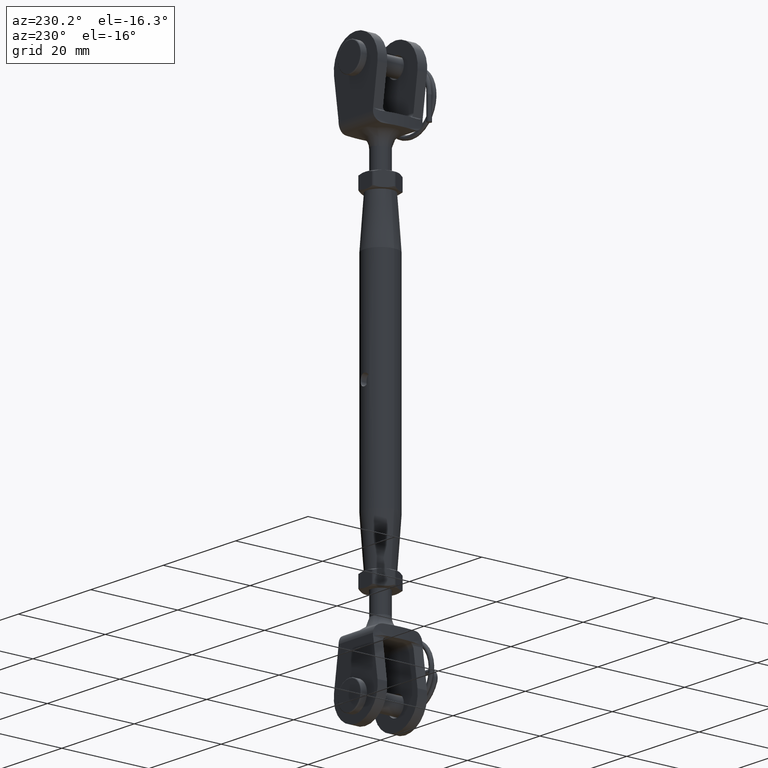
[diagram: clean part render]
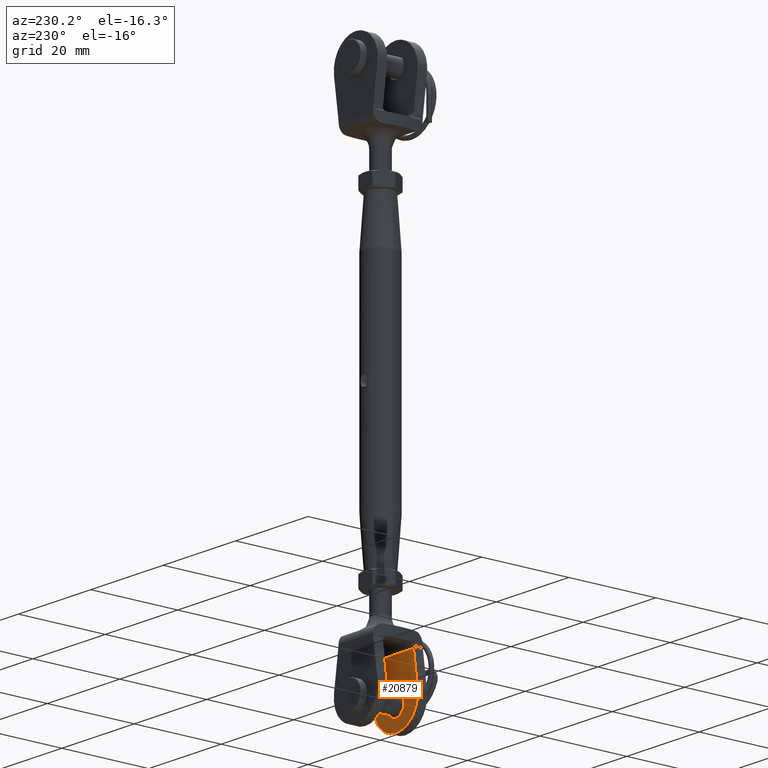
[diagram: same view with one face highlighted and labeled with its STEP entity id]
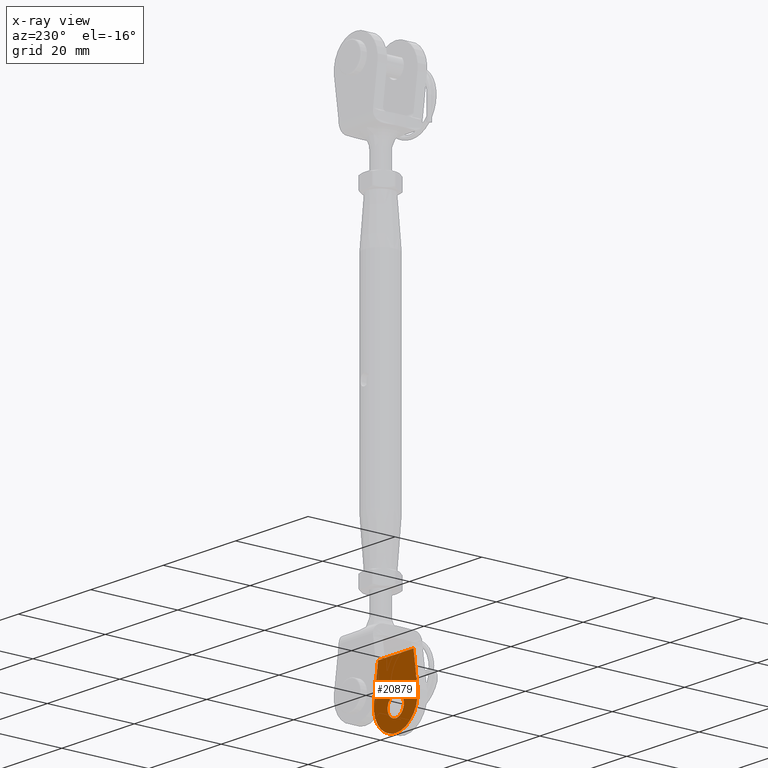
[diagram: x-ray of the same camera — body ghosted, the highlighted face saturated]
A machine part, auxiliary view. The second image highlights one B-rep face of the part: STEP entity #20879.
The next image is the same camera in x-ray: the body ghosted, the highlighted face saturated — about 4% of this face is hidden behind the body in this view.
In plain terms, the highlighted planar face has unit normal (0, 1, 0).
Its self-contained STEP definition (entity closure, byte-faithful):
#2078 = DIRECTION ( 'NONE',  ( -0.1444918574591643500, 0.0000000000000000000, 0.9895059894351324600 ) ) ;
#3071 = VERTEX_POINT ( 'NONE', #16437 ) ;
#4348 = DIRECTION ( 'NONE',  ( 0.0000000000000000000, 0.0000000000000000000, 1.000000000000000000 ) ) ;
#4849 = EDGE_CURVE ( 'NONE', #6359, #18119, #11126, .T. ) ;
#6017 = CIRCLE ( 'NONE', #25822, 6.063631816342160100 ) ;
#6063 = AXIS2_PLACEMENT_3D ( 'NONE', #15391, #20124, #17769 ) ;
#6359 = VERTEX_POINT ( 'NONE', #7856 ) ;
#6433 = ORIENTED_EDGE ( 'NONE', *, *, #26220, .T. ) ;
#6873 = CARTESIAN_POINT ( 'NONE',  ( 8.659864886992019300E-016, -3.500000000000000000, 15.50000000000000400 ) ) ;
#7715 = VERTEX_POINT ( 'NONE', #6873 ) ;
#7856 = CARTESIAN_POINT ( 'NONE',  ( 6.000000000000000000, -3.500000000000000000, 8.560222759566077100 ) ) ;
#7858 = FACE_BOUND ( 'NONE', #24285, .T. ) ;
#7862 = DIRECTION ( 'NONE',  ( 0.0000000000000000000, 0.0000000000000000000, -1.000000000000000000 ) ) ;
#8408 = DIRECTION ( 'NONE',  ( 0.0000000000000000000, 0.0000000000000000000, 1.000000000000000000 ) ) ;
#9094 = VERTEX_POINT ( 'NONE', #12390 ) ;
#9108 = CARTESIAN_POINT ( 'NONE',  ( 4.896024237348628500, -3.500000000000000000, 1.000000000000000000 ) ) ;
#9220 = FACE_OUTER_BOUND ( 'NONE', #21255, .T. ) ;
#9811 = LINE ( 'NONE', #24417, #22309 ) ;
#10357 = AXIS2_PLACEMENT_3D ( 'NONE', #18726, #12384, #7862 ) ;
#10388 = ORIENTED_EDGE ( 'NONE', *, *, #11766, .T. ) ;
#10571 = CARTESIAN_POINT ( 'NONE',  ( 0.0000000000000000000, -3.500000000000000000, 10.50000000000000000 ) ) ;
#11063 = AXIS2_PLACEMENT_3D ( 'NONE', #21773, #27951, #4348 ) ;
#11085 = DIRECTION ( 'NONE',  ( -0.0000000000000000000, 1.000000000000000000, -0.0000000000000000000 ) ) ;
#11126 = LINE ( 'NONE', #13960, #16201 ) ;
#11766 = EDGE_CURVE ( 'NONE', #9094, #7715, #27792, .T. ) ;
#11874 = ORIENTED_EDGE ( 'NONE', *, *, #14897, .F. ) ;
#12182 = CARTESIAN_POINT ( 'NONE',  ( -4.896024237348626700, -3.500000000000000000, 1.000000000000002700 ) ) ;
#12248 = AXIS2_PLACEMENT_3D ( 'NONE', #10571, #21545, #8408 ) ;
#12384 = DIRECTION ( 'NONE',  ( 0.0000000000000000000, 1.000000000000000000, 0.0000000000000000000 ) ) ;
#12390 = CARTESIAN_POINT ( 'NONE',  ( -5.999999999999998200, -3.500000000000000000, 8.560222759566078900 ) ) ;
#12903 = EDGE_CURVE ( 'NONE', #18119, #16071, #9811, .T. ) ;
#12904 = LINE ( 'NONE', #16841, #18339 ) ;
#13124 = CARTESIAN_POINT ( 'NONE',  ( 2.755455298081543800E-016, -3.500000000000000000, 8.250000000000000000 ) ) ;
#13886 = DIRECTION ( 'NONE',  ( -1.000000000000000000, 0.0000000000000000000, 1.224646799147353200E-016 ) ) ;
#13960 = CARTESIAN_POINT ( 'NONE',  ( 4.750000000000000900, -3.500000000000000000, 5.388507560391507200E-016 ) ) ;
#14897 = EDGE_CURVE ( 'NONE', #21178, #3071, #22978, .T. ) ;
#15391 = CARTESIAN_POINT ( 'NONE',  ( 8.659864886992019300E-016, -3.500000000000000000, 9.436368183657842600 ) ) ;
#16071 = VERTEX_POINT ( 'NONE', #12182 ) ;
#16201 = VECTOR ( 'NONE', #18134, 999.9999999999998900 ) ;
#16437 = CARTESIAN_POINT ( 'NONE',  ( 0.0000000000000000000, -3.500000000000000000, 12.75000000000000200 ) ) ;
#16841 = CARTESIAN_POINT ( 'NONE',  ( -5.999999999999999100, -3.500000000000000000, 8.560222759566077100 ) ) ;
#17418 = ORIENTED_EDGE ( 'NONE', *, *, #12903, .T. ) ;
#17769 = DIRECTION ( 'NONE',  ( 0.0000000000000000000, 0.0000000000000000000, -1.000000000000000000 ) ) ;
#18119 = VERTEX_POINT ( 'NONE', #9108 ) ;
#18134 = DIRECTION ( 'NONE',  ( -0.1444918574591642400, 0.0000000000000000000, -0.9895059894351325700 ) ) ;
#18339 = VECTOR ( 'NONE', #2078, 1000.000000000000000 ) ;
#18548 = ORIENTED_EDGE ( 'NONE', *, *, #19713, .F. ) ;
#18726 = CARTESIAN_POINT ( 'NONE',  ( 8.659864886992019300E-016, -3.500000000000000000, 9.436368183657842600 ) ) ;
#19713 = EDGE_CURVE ( 'NONE', #3071, #21178, #23114, .T. ) ;
#20124 = DIRECTION ( 'NONE',  ( -0.0000000000000000000, 1.000000000000000000, -0.0000000000000000000 ) ) ;
#20627 = EDGE_CURVE ( 'NONE', #16071, #9094, #12904, .T. ) ;
#20879 = ADVANCED_FACE ( 'NONE', ( #7858, #9220 ), #23184, .T. ) ;
#21178 = VERTEX_POINT ( 'NONE', #13124 ) ;
#21255 = EDGE_LOOP ( 'NONE', ( #23366, #17418, #25884, #10388, #6433 ) ) ;
#21545 = DIRECTION ( 'NONE',  ( 0.0000000000000000000, 1.000000000000000000, 0.0000000000000000000 ) ) ;
#21773 = CARTESIAN_POINT ( 'NONE',  ( 0.0000000000000000000, -3.500000000000000000, 10.50000000000000000 ) ) ;
#22309 = VECTOR ( 'NONE', #13886, 1000.000000000000000 ) ;
#22978 = CIRCLE ( 'NONE', #12248, 2.250000000000000400 ) ;
#23114 = CIRCLE ( 'NONE', #11063, 2.250000000000000400 ) ;
#23184 = PLANE ( 'NONE',  #10357 ) ;
#23366 = ORIENTED_EDGE ( 'NONE', *, *, #4849, .T. ) ;
#24250 = DIRECTION ( 'NONE',  ( 0.0000000000000000000, 0.0000000000000000000, -1.000000000000000000 ) ) ;
#24285 = EDGE_LOOP ( 'NONE', ( #18548, #11874 ) ) ;
#24417 = CARTESIAN_POINT ( 'NONE',  ( -1.671706405553127100E-016, -3.500000000000000000, 1.000000000000000900 ) ) ;
#25822 = AXIS2_PLACEMENT_3D ( 'NONE', #26230, #11085, #24250 ) ;
#25884 = ORIENTED_EDGE ( 'NONE', *, *, #20627, .T. ) ;
#26220 = EDGE_CURVE ( 'NONE', #7715, #6359, #6017, .T. ) ;
#26230 = CARTESIAN_POINT ( 'NONE',  ( 8.659864886992019300E-016, -3.500000000000000000, 9.436368183657842600 ) ) ;
#27792 = CIRCLE ( 'NONE', #6063, 6.063631816342160100 ) ;
#27951 = DIRECTION ( 'NONE',  ( 0.0000000000000000000, 1.000000000000000000, 0.0000000000000000000 ) ) ;